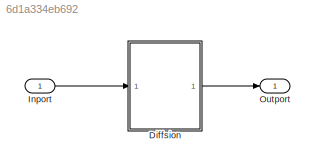
MODEL slx_6d1a334eb692
KIND model
CONFIG AbsTol = auto
CONFIG EnableMultiTasking = off
CONFIG FixedStep = auto
CONFIG MaxStep = auto
CONFIG MinStep = auto
CONFIG RelTol = 1e-3
CONFIG SampleTimeConstraint = Unconstrained
CONFIG SolverName = FixedStepDiscrete
CONFIG StartTime = 0.0
CONFIG StopTime = 10.0
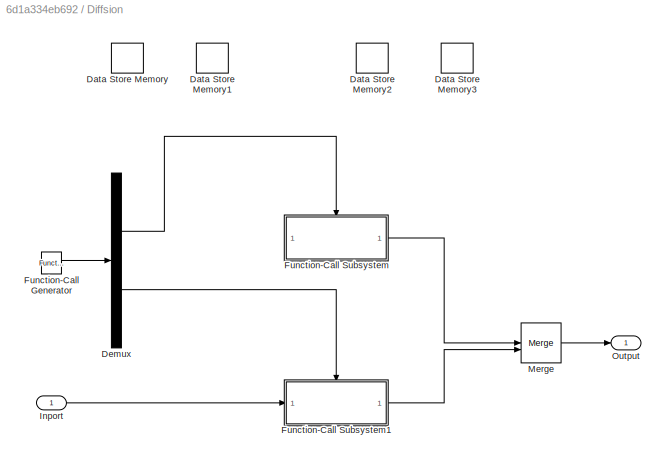
BLOCK [SubSystem] Diffsion
BLOCK [DataStoreMemory] Diffsion/Data Store Memory
  DataStoreName = Di_s1
  Dimensions = length
  OutDataTypeStr = int32
  ShowAdditionalParam = off
  WriteAfterWriteMsg = warning
BLOCK [DataStoreMemory] Diffsion/Data Store Memory1
  DataStoreName = Di_s2
  Dimensions = length
  OutDataTypeStr = int32
  ShowAdditionalParam = off
  WriteAfterWriteMsg = warning
BLOCK [DataStoreMemory] Diffsion/Data Store Memory2
  DataStoreName = Di_m1
  Dimensions = length
  OutDataTypeStr = int32
  ShowAdditionalParam = off
  WriteAfterWriteMsg = warning
BLOCK [DataStoreMemory] Diffsion/Data Store Memory3
  DataStoreName = Di_m2
  Dimensions = length
  OutDataTypeStr = int32
  ShowAdditionalParam = off
  WriteAfterWriteMsg = warning
BLOCK [Demux] Diffsion/Demux
  Outputs = 2
BLOCK [Reference] Diffsion/Function-Call Generator  REF=simulink/Ports &
Subsystems/Function-Call
Generator
  SourceBlock = simulink/Ports &\nSubsystems/Function-Call\nGenerator
  SourceType = Function-Call Generator
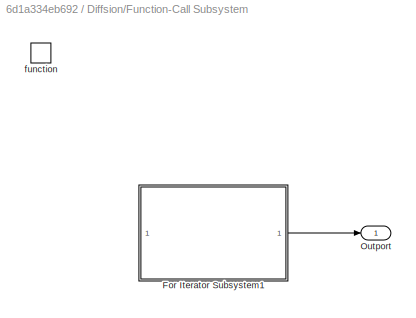
BLOCK [SubSystem] Diffsion/Function-Call Subsystem
  TreatAsAtomicUnit = on
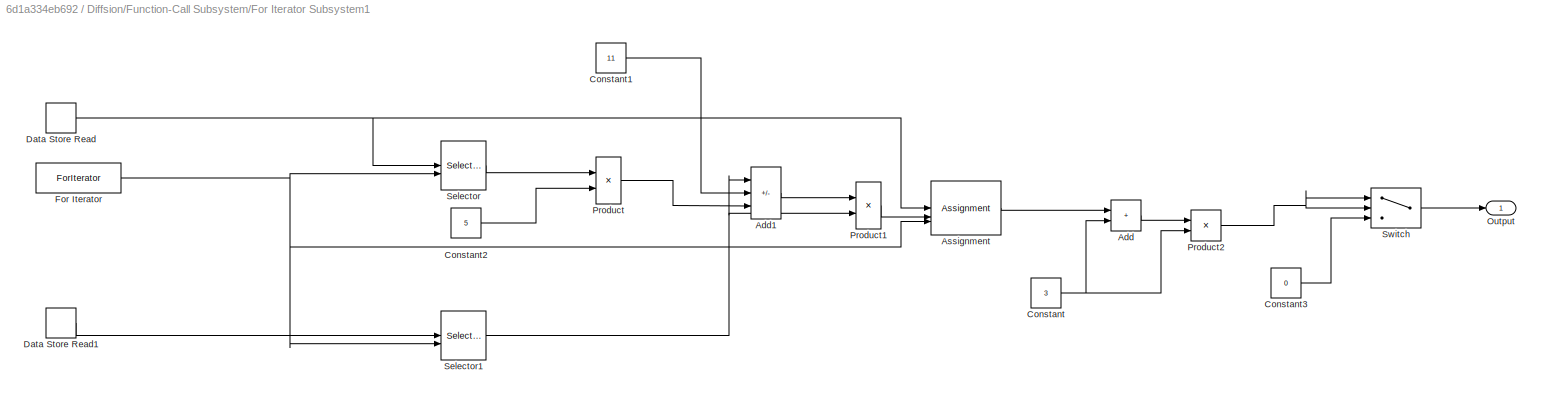
BLOCK [SubSystem] Diffsion/Function-Call Subsystem/For Iterator Subsystem1
  TreatAsAtomicUnit = on
BLOCK [Sum] Diffsion/Function-Call Subsystem/For Iterator Subsystem1/Add
  AccumDataTypeStr = int32
  IconShape = rectangular
BLOCK [Sum] Diffsion/Function-Call Subsystem/For Iterator Subsystem1/Add1
  AccumDataTypeStr = int32
  IconShape = rectangular
  Inputs = ++-
  OutDataTypeStr = int32
BLOCK [Assignment] Diffsion/Function-Call Subsystem/For Iterator Subsystem1/Assignment
  DiagnosticForDimensions = Warning
  IndexMode = Zero-based
  IndexOptions = Index vector (port)
  Indices = 1
  OutputSizes = 1
BLOCK [Constant] Diffsion/Function-Call Subsystem/For Iterator Subsystem1/Constant
  OutDataTypeStr = int32
  Value = 3
BLOCK [Constant] Diffsion/Function-Call Subsystem/For Iterator Subsystem1/Constant1
  OutDataTypeStr = int32
  Value = 11
BLOCK [Constant] Diffsion/Function-Call Subsystem/For Iterator Subsystem1/Constant2
  OutDataTypeStr = int32
  Value = 5
BLOCK [Constant] Diffsion/Function-Call Subsystem/For Iterator Subsystem1/Constant3
  OutDataTypeStr = int32
  Value = 0
BLOCK [DataStoreRead] Diffsion/Function-Call Subsystem/For Iterator Subsystem1/Data Store Read
  DataStoreName = Di_s1
  IndexOptions = Index vector (dialog)
  Indices = 1
  OutputSizes = 1
BLOCK [DataStoreRead] Diffsion/Function-Call Subsystem/For Iterator Subsystem1/Data Store Read1
  DataStoreName = Di_s2
  IndexOptions = Index vector (dialog)
  Indices = 1
  OutputSizes = 1
BLOCK [ForIterator] Diffsion/Function-Call Subsystem/For Iterator Subsystem1/For Iterator
  IndexMode = Zero-based
  IterationLimit = length
BLOCK [Outport] Diffsion/Function-Call Subsystem/For Iterator Subsystem1/Output
  OutDataTypeStr = int32
BLOCK [Product] Diffsion/Function-Call Subsystem/For Iterator Subsystem1/Product
  OutDataTypeStr = int32
BLOCK [Product] Diffsion/Function-Call Subsystem/For Iterator Subsystem1/Product1
  OutDataTypeStr = int32
BLOCK [Product] Diffsion/Function-Call Subsystem/For Iterator Subsystem1/Product2
  OutDataTypeStr = int32
BLOCK [Selector] Diffsion/Function-Call Subsystem/For Iterator Subsystem1/Selector
  IndexMode = Zero-based
  IndexOptions = Index vector (port)
  Indices = [1 3]
  InputPortWidth = length
  OutputSizes = 1
BLOCK [Selector] Diffsion/Function-Call Subsystem/For Iterator Subsystem1/Selector1
  IndexMode = Zero-based
  IndexOptions = Index vector (port)
  Indices = [1 3]
  InputPortWidth = length
  OutputSizes = 1
BLOCK [Switch] Diffsion/Function-Call Subsystem/For Iterator Subsystem1/Switch
  Criteria = u2 > Threshold
  InputSameDT = off
  SaturateOnIntegerOverflow = off
BLOCK [Outport] Diffsion/Function-Call Subsystem/Outport
  OutDataTypeStr = int32
BLOCK [TriggerPort] Diffsion/Function-Call Subsystem/function
  StatesWhenEnabling = held
  TriggerType = function-call
  VariantControl = (inherit)
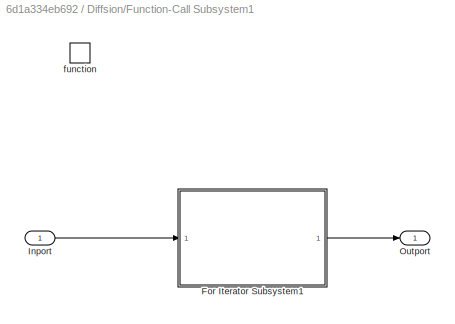
BLOCK [SubSystem] Diffsion/Function-Call Subsystem1
  TreatAsAtomicUnit = on
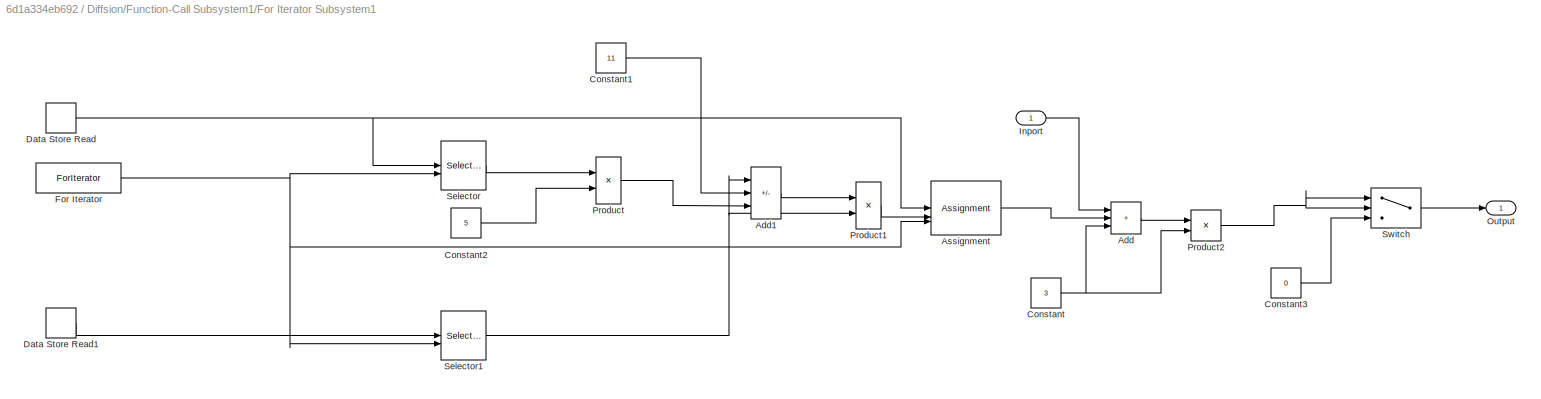
BLOCK [SubSystem] Diffsion/Function-Call Subsystem1/For Iterator Subsystem1
  TreatAsAtomicUnit = on
BLOCK [Sum] Diffsion/Function-Call Subsystem1/For Iterator Subsystem1/Add
  AccumDataTypeStr = int32
  IconShape = rectangular
  Inputs = +++
  OutDataTypeStr = int32
BLOCK [Sum] Diffsion/Function-Call Subsystem1/For Iterator Subsystem1/Add1
  AccumDataTypeStr = int32
  IconShape = rectangular
  Inputs = ++-
  OutDataTypeStr = int32
BLOCK [Assignment] Diffsion/Function-Call Subsystem1/For Iterator Subsystem1/Assignment
  DiagnosticForDimensions = Warning
  IndexMode = Zero-based
  IndexOptions = Index vector (port)
  Indices = 1
  OutputSizes = 1
BLOCK [Constant] Diffsion/Function-Call Subsystem1/For Iterator Subsystem1/Constant
  OutDataTypeStr = int32
  Value = 3
BLOCK [Constant] Diffsion/Function-Call Subsystem1/For Iterator Subsystem1/Constant1
  OutDataTypeStr = int32
  Value = 11
BLOCK [Constant] Diffsion/Function-Call Subsystem1/For Iterator Subsystem1/Constant2
  OutDataTypeStr = int32
  Value = 5
BLOCK [Constant] Diffsion/Function-Call Subsystem1/For Iterator Subsystem1/Constant3
  OutDataTypeStr = int32
  Value = 0
BLOCK [DataStoreRead] Diffsion/Function-Call Subsystem1/For Iterator Subsystem1/Data Store Read
  DataStoreName = Di_m1
  IndexOptions = Index vector (dialog)
  Indices = 1
  OutputSizes = 1
BLOCK [DataStoreRead] Diffsion/Function-Call Subsystem1/For Iterator Subsystem1/Data Store Read1
  DataStoreName = Di_m2
  IndexOptions = Index vector (dialog)
  Indices = 1
  OutputSizes = 1
BLOCK [ForIterator] Diffsion/Function-Call Subsystem1/For Iterator Subsystem1/For Iterator
  IndexMode = Zero-based
  IterationLimit = length
BLOCK [Inport] Diffsion/Function-Call Subsystem1/For Iterator Subsystem1/Inport
  OutDataTypeStr = int32
BLOCK [Outport] Diffsion/Function-Call Subsystem1/For Iterator Subsystem1/Output
  OutDataTypeStr = int32
BLOCK [Product] Diffsion/Function-Call Subsystem1/For Iterator Subsystem1/Product
  OutDataTypeStr = int32
BLOCK [Product] Diffsion/Function-Call Subsystem1/For Iterator Subsystem1/Product1
  OutDataTypeStr = int32
BLOCK [Product] Diffsion/Function-Call Subsystem1/For Iterator Subsystem1/Product2
  OutDataTypeStr = int32
BLOCK [Selector] Diffsion/Function-Call Subsystem1/For Iterator Subsystem1/Selector
  IndexMode = Zero-based
  IndexOptions = Index vector (port)
  Indices = [1 3]
  InputPortWidth = length
  OutputSizes = 1
BLOCK [Selector] Diffsion/Function-Call Subsystem1/For Iterator Subsystem1/Selector1
  IndexMode = Zero-based
  IndexOptions = Index vector (port)
  Indices = [1 3]
  InputPortWidth = length
  OutputSizes = 1
BLOCK [Switch] Diffsion/Function-Call Subsystem1/For Iterator Subsystem1/Switch
  Criteria = u2 > Threshold
  InputSameDT = off
  SaturateOnIntegerOverflow = off
BLOCK [Inport] Diffsion/Function-Call Subsystem1/Inport
  OutDataTypeStr = int32
BLOCK [Outport] Diffsion/Function-Call Subsystem1/Outport
  OutDataTypeStr = int32
BLOCK [TriggerPort] Diffsion/Function-Call Subsystem1/function
  StatesWhenEnabling = held
  TriggerType = function-call
  VariantControl = (inherit)
BLOCK [Inport] Diffsion/Inport
BLOCK [Merge] Diffsion/Merge
BLOCK [Outport] Diffsion/Output
BLOCK [Inport] Inport
BLOCK [Outport] Outport
  OutDataTypeStr = int32
LINE Diffsion/Demux:1 -> Diffsion/Function-Call Subsystem:trigger
LINE Diffsion/Demux:2 -> Diffsion/Function-Call Subsystem1:trigger
LINE Diffsion/Function-Call Generator:1 -> Diffsion/Demux:1
LINE Diffsion/Function-Call Subsystem/For Iterator Subsystem1/Add1:1 -> Diffsion/Function-Call Subsystem/For Iterator Subsystem1/Product1:1
LINE Diffsion/Function-Call Subsystem/For Iterator Subsystem1/Add:1 -> Diffsion/Function-Call Subsystem/For Iterator Subsystem1/Product2:1
LINE Diffsion/Function-Call Subsystem/For Iterator Subsystem1/Assignment:1 -> Diffsion/Function-Call Subsystem/For Iterator Subsystem1/Add:1
LINE Diffsion/Function-Call Subsystem/For Iterator Subsystem1/Constant1:1 -> Diffsion/Function-Call Subsystem/For Iterator Subsystem1/Add1:2
LINE Diffsion/Function-Call Subsystem/For Iterator Subsystem1/Constant2:1 -> Diffsion/Function-Call Subsystem/For Iterator Subsystem1/Product:2
LINE Diffsion/Function-Call Subsystem/For Iterator Subsystem1/Constant3:1 -> Diffsion/Function-Call Subsystem/For Iterator Subsystem1/Switch:3
NET Diffsion/Function-Call Subsystem/For Iterator Subsystem1/Constant:1 -> Diffsion/Function-Call Subsystem/For Iterator Subsystem1/Add:2, Diffsion/Function-Call Subsystem/For Iterator Subsystem1/Product2:2
LINE Diffsion/Function-Call Subsystem/For Iterator Subsystem1/Data Store Read1:1 -> Diffsion/Function-Call Subsystem/For Iterator Subsystem1/Selector1:1
NET Diffsion/Function-Call Subsystem/For Iterator Subsystem1/Data Store Read:1 -> Diffsion/Function-Call Subsystem/For Iterator Subsystem1/Assignment:1, Diffsion/Function-Call Subsystem/For Iterator Subsystem1/Selector:1
NET Diffsion/Function-Call Subsystem/For Iterator Subsystem1/For Iterator:1 -> Diffsion/Function-Call Subsystem/For Iterator Subsystem1/Assignment:3, Diffsion/Function-Call Subsystem/For Iterator Subsystem1/Selector1:2, Diffsion/Function-Call Subsystem/For Iterator Subsystem1/Selector:2
LINE Diffsion/Function-Call Subsystem/For Iterator Subsystem1/Product1:1 -> Diffsion/Function-Call Subsystem/For Iterator Subsystem1/Assignment:2
NET Diffsion/Function-Call Subsystem/For Iterator Subsystem1/Product2:1 -> Diffsion/Function-Call Subsystem/For Iterator Subsystem1/Switch:1, Diffsion/Function-Call Subsystem/For Iterator Subsystem1/Switch:2
LINE Diffsion/Function-Call Subsystem/For Iterator Subsystem1/Product:1 -> Diffsion/Function-Call Subsystem/For Iterator Subsystem1/Add1:3
NET Diffsion/Function-Call Subsystem/For Iterator Subsystem1/Selector1:1 -> Diffsion/Function-Call Subsystem/For Iterator Subsystem1/Add1:1, Diffsion/Function-Call Subsystem/For Iterator Subsystem1/Product1:2
LINE Diffsion/Function-Call Subsystem/For Iterator Subsystem1/Selector:1 -> Diffsion/Function-Call Subsystem/For Iterator Subsystem1/Product:1
LINE Diffsion/Function-Call Subsystem/For Iterator Subsystem1/Switch:1 -> Diffsion/Function-Call Subsystem/For Iterator Subsystem1/Output:1
LINE Diffsion/Function-Call Subsystem/For Iterator Subsystem1:1 -> Diffsion/Function-Call Subsystem/Outport:1
LINE Diffsion/Function-Call Subsystem1/For Iterator Subsystem1/Add1:1 -> Diffsion/Function-Call Subsystem1/For Iterator Subsystem1/Product1:1
LINE Diffsion/Function-Call Subsystem1/For Iterator Subsystem1/Add:1 -> Diffsion/Function-Call Subsystem1/For Iterator Subsystem1/Product2:1
LINE Diffsion/Function-Call Subsystem1/For Iterator Subsystem1/Assignment:1 -> Diffsion/Function-Call Subsystem1/For Iterator Subsystem1/Add:2
LINE Diffsion/Function-Call Subsystem1/For Iterator Subsystem1/Constant1:1 -> Diffsion/Function-Call Subsystem1/For Iterator Subsystem1/Add1:2
LINE Diffsion/Function-Call Subsystem1/For Iterator Subsystem1/Constant2:1 -> Diffsion/Function-Call Subsystem1/For Iterator Subsystem1/Product:2
LINE Diffsion/Function-Call Subsystem1/For Iterator Subsystem1/Constant3:1 -> Diffsion/Function-Call Subsystem1/For Iterator Subsystem1/Switch:3
NET Diffsion/Function-Call Subsystem1/For Iterator Subsystem1/Constant:1 -> Diffsion/Function-Call Subsystem1/For Iterator Subsystem1/Add:3, Diffsion/Function-Call Subsystem1/For Iterator Subsystem1/Product2:2
LINE Diffsion/Function-Call Subsystem1/For Iterator Subsystem1/Data Store Read1:1 -> Diffsion/Function-Call Subsystem1/For Iterator Subsystem1/Selector1:1
NET Diffsion/Function-Call Subsystem1/For Iterator Subsystem1/Data Store Read:1 -> Diffsion/Function-Call Subsystem1/For Iterator Subsystem1/Assignment:1, Diffsion/Function-Call Subsystem1/For Iterator Subsystem1/Selector:1
NET Diffsion/Function-Call Subsystem1/For Iterator Subsystem1/For Iterator:1 -> Diffsion/Function-Call Subsystem1/For Iterator Subsystem1/Assignment:3, Diffsion/Function-Call Subsystem1/For Iterator Subsystem1/Selector1:2, Diffsion/Function-Call Subsystem1/For Iterator Subsystem1/Selector:2
LINE Diffsion/Function-Call Subsystem1/For Iterator Subsystem1/Inport:1 -> Diffsion/Function-Call Subsystem1/For Iterator Subsystem1/Add:1
LINE Diffsion/Function-Call Subsystem1/For Iterator Subsystem1/Product1:1 -> Diffsion/Function-Call Subsystem1/For Iterator Subsystem1/Assignment:2
NET Diffsion/Function-Call Subsystem1/For Iterator Subsystem1/Product2:1 -> Diffsion/Function-Call Subsystem1/For Iterator Subsystem1/Switch:1, Diffsion/Function-Call Subsystem1/For Iterator Subsystem1/Switch:2
LINE Diffsion/Function-Call Subsystem1/For Iterator Subsystem1/Product:1 -> Diffsion/Function-Call Subsystem1/For Iterator Subsystem1/Add1:3
NET Diffsion/Function-Call Subsystem1/For Iterator Subsystem1/Selector1:1 -> Diffsion/Function-Call Subsystem1/For Iterator Subsystem1/Add1:1, Diffsion/Function-Call Subsystem1/For Iterator Subsystem1/Product1:2
LINE Diffsion/Function-Call Subsystem1/For Iterator Subsystem1/Selector:1 -> Diffsion/Function-Call Subsystem1/For Iterator Subsystem1/Product:1
LINE Diffsion/Function-Call Subsystem1/For Iterator Subsystem1/Switch:1 -> Diffsion/Function-Call Subsystem1/For Iterator Subsystem1/Output:1
LINE Diffsion/Function-Call Subsystem1/For Iterator Subsystem1:1 -> Diffsion/Function-Call Subsystem1/Outport:1
LINE Diffsion/Function-Call Subsystem1/Inport:1 -> Diffsion/Function-Call Subsystem1/For Iterator Subsystem1:1
LINE Diffsion/Function-Call Subsystem1:1 -> Diffsion/Merge:2
LINE Diffsion/Function-Call Subsystem:1 -> Diffsion/Merge:1
LINE Diffsion/Inport:1 -> Diffsion/Function-Call Subsystem1:1
LINE Diffsion/Merge:1 -> Diffsion/Output:1
LINE Diffsion:1 -> Outport:1
LINE Inport:1 -> Diffsion:1
note: NET lines group one-source signal fan-out (src -> all destinations, sorted); 1:1 wires keep LINE
